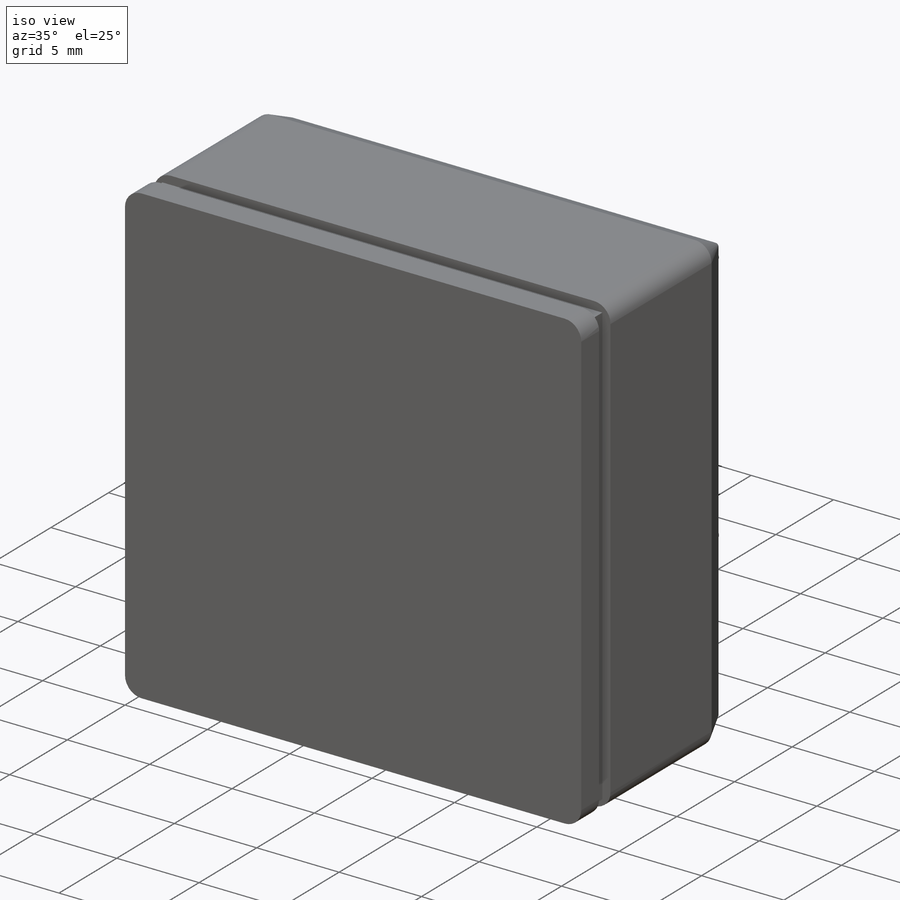
[diagram: iso view]
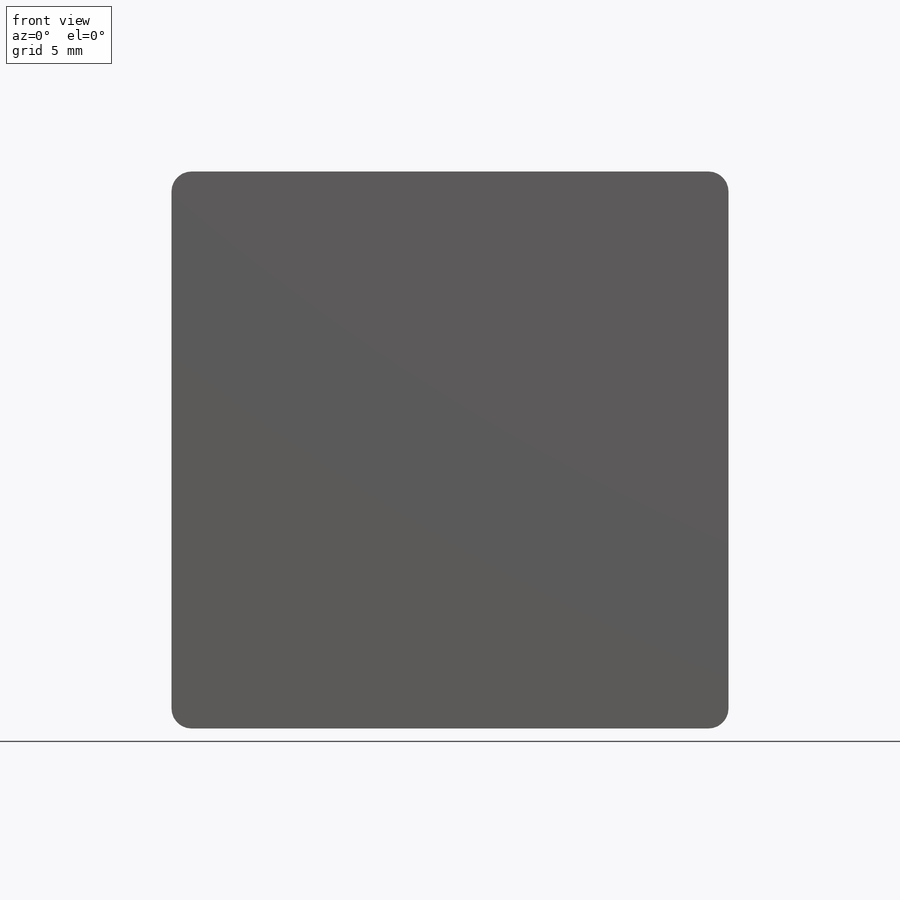
[diagram: front view]
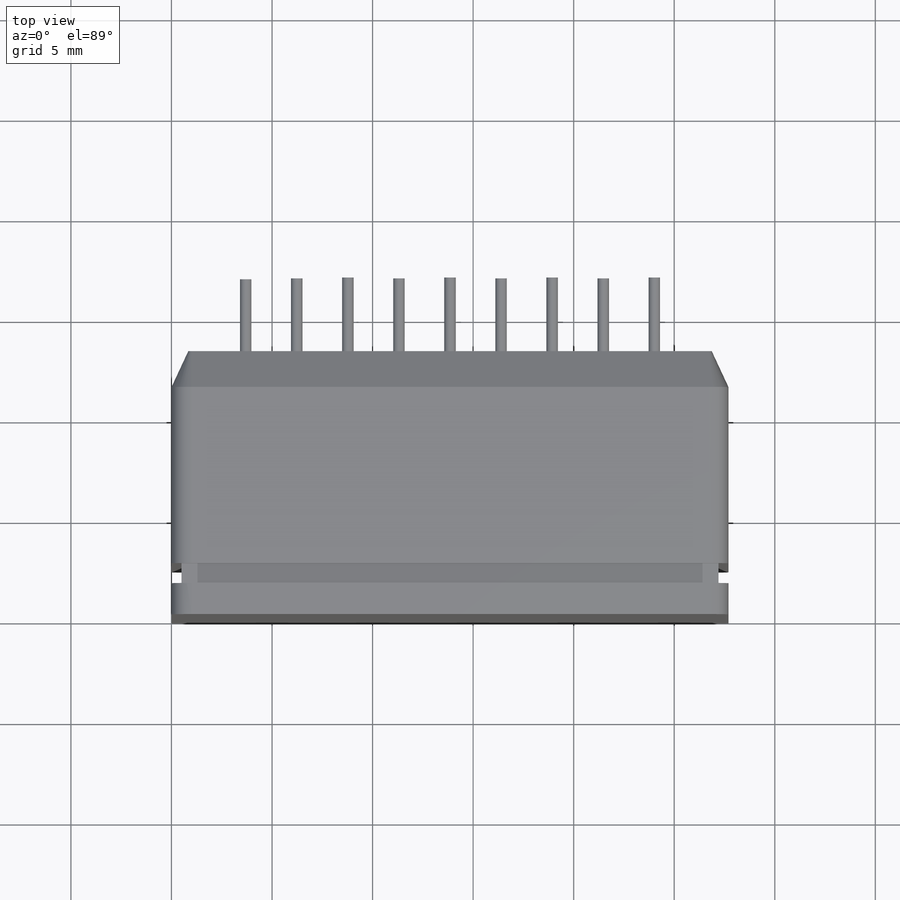
[diagram: top view]
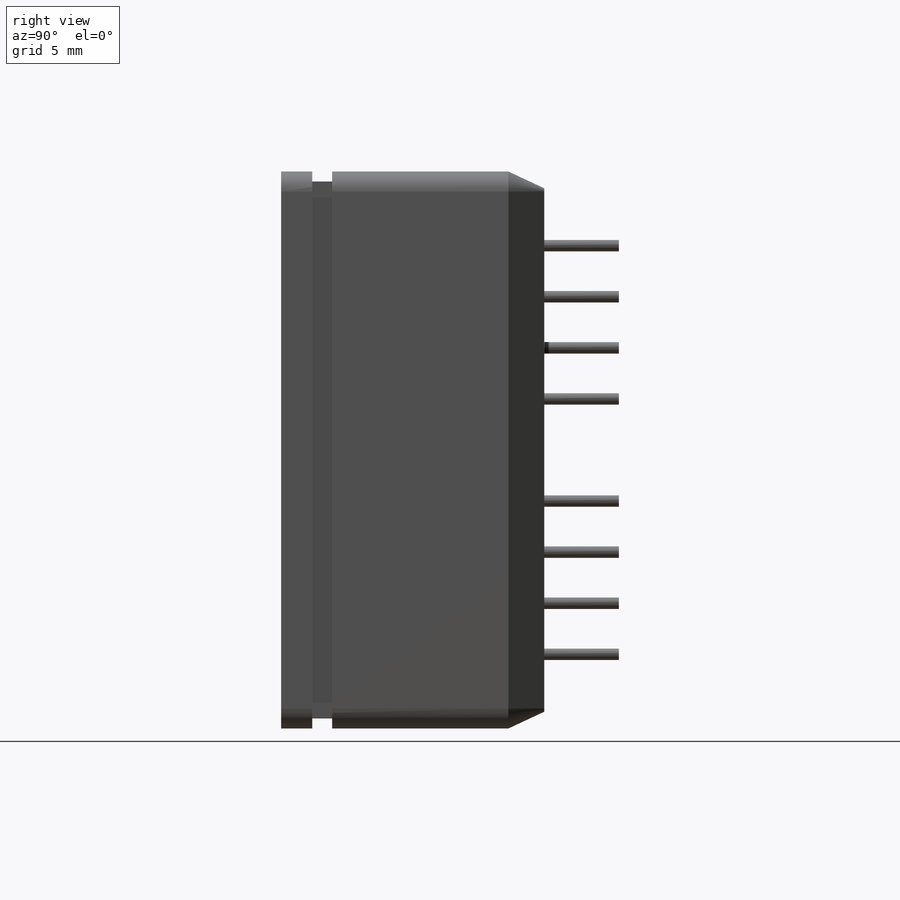
[diagram: right view]
SOLIDWORKS PART (.sldprt)
format: sldprt  version: not decoded by parser v0  size: 525,824 bytes
history: native  units: mm
features: sketch x10, extrude x7, material x1, plane x1, cut_extrude x1 (+11 scaffold rows collapsed)
feature tree (31):
  scaffold x11  (default folders/planes/origin — collapsed)
  material  "Material <not specified>"
  sketch  "Sketch1"
  plane  "Plane1"  Offset=2.54mm
  sketch  "Sketch2"  dims[D1=1.0mm]
  extrude  "metal-case-at-HV"  Depth=8.76mm
  sketch  "Sketch3"
  extrude  "photocathode"  Depth=0.1mm
  sketch  "Sketch5"
  extrude  "Boss-Extrude3"  Depth=0.99mm
  sketch  "Sketch6"  dims[D1=1.0mm D2=1.0mm D3=2.0mm]
  extrude  "mirrored-surface"  Depth=0.05mm
  sketch  "Sketch7"  dims[D1=1.0mm D2=1.0mm D3=1.0mm D4=1.0mm]
  extrude  "front-glass"  Depth=1.5mm
  sketch  "Sketch8"
  extrude  "pins"  Depth=5.5mm
  sketch  "Sketch9"
  cut_extrude  "Cut-Extrude1"  Depth=5.5mm
  sketch  "Sketch10"  dims[D1=1.0mm]
  extrude  "rubber"  Depth=1.79mm
  sketch  "Sketch11"  dims[D1=1.0mm D2=1.0mm]
decode coverage: 13 of 18 modeling features carry decoded parameters
note: suppression state not decoded; provenance and decode notes live in map.json
